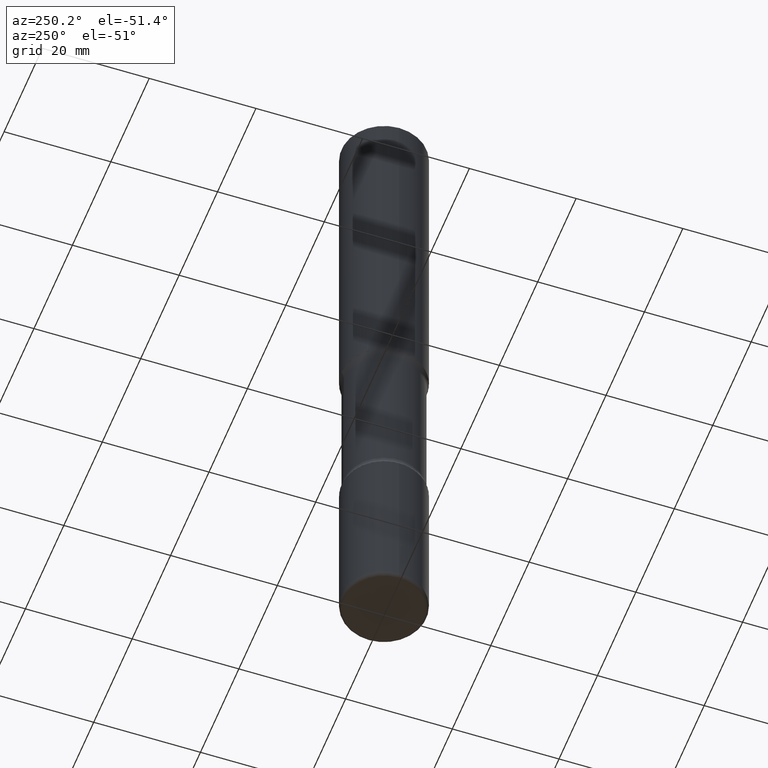
[diagram: clean part render]
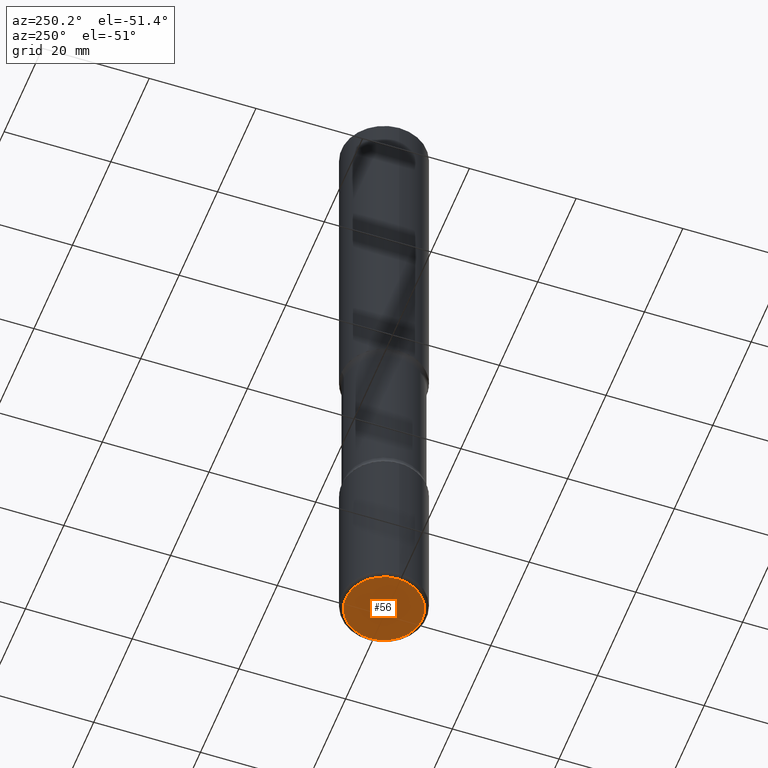
[diagram: same view with one face highlighted and labeled with its STEP entity id]
A machine part, auxiliary view. The second image highlights one B-rep face of the part: STEP entity #56.
In plain terms, the highlighted planar face has unit normal (0, -0, -1).
Its self-contained STEP definition (entity closure, byte-faithful):
#56 = ADVANCED_FACE ( 'NONE', ( #443 ), #554, .T. ) ;
#94 = EDGE_CURVE ( 'NONE', #204, #387, #232, .T. ) ;
#104 = CARTESIAN_POINT ( 'NONE',  ( 1.222734403092568523E-28, -1.745740669421573304E-14, -5.000000000000000888 ) ) ;
#169 = CARTESIAN_POINT ( 'NONE',  ( -0.2825000000000003064, -1.529116983524678288E-14, -5.000000000000000888 ) ) ;
#200 = ORIENTED_EDGE ( 'NONE', *, *, #94, .F. ) ;
#201 = AXIS2_PLACEMENT_3D ( 'NONE', #104, #275, #359 ) ;
#204 = VERTEX_POINT ( 'NONE', #407 ) ;
#221 = EDGE_CURVE ( 'NONE', #387, #204, #233, .T. ) ;
#232 = CIRCLE ( 'NONE', #201, 0.2825000000000003064 ) ;
#233 = CIRCLE ( 'NONE', #535, 0.2825000000000003064 ) ;
#242 = EDGE_LOOP ( 'NONE', ( #200, #245 ) ) ;
#245 = ORIENTED_EDGE ( 'NONE', *, *, #221, .F. ) ;
#262 = DIRECTION ( 'NONE',  ( -1.000000000000000000, 6.982962677686265922E-15, -4.876176775795935793E-29 ) ) ;
#275 = DIRECTION ( 'NONE',  ( -2.445468806185136597E-29, 3.491481338843145583E-15, 1.000000000000000000 ) ) ;
#339 = DIRECTION ( 'NONE',  ( 2.438088387897960049E-29, -3.491481338843145188E-15, -1.000000000000000000 ) ) ;
#359 = DIRECTION ( 'NONE',  ( 1.000000000000000000, -6.982962677686261977E-15, 0.000000000000000000 ) ) ;
#379 = AXIS2_PLACEMENT_3D ( 'NONE', #483, #339, #262 ) ;
#387 = VERTEX_POINT ( 'NONE', #169 ) ;
#407 = CARTESIAN_POINT ( 'NONE',  ( 0.2825000000000003064, -1.943009365066210307E-14, -5.000000000000000888 ) ) ;
#443 = FACE_OUTER_BOUND ( 'NONE', #242, .T. ) ;
#446 = CARTESIAN_POINT ( 'NONE',  ( 1.222734403092568523E-28, -1.745740669421573304E-14, -5.000000000000000888 ) ) ;
#453 = DIRECTION ( 'NONE',  ( -2.445468806185136597E-29, 3.491481338843145583E-15, 1.000000000000000000 ) ) ;
#483 = CARTESIAN_POINT ( 'NONE',  ( -1.278066645796191221E-29, -3.679792346352024126E-14, -5.000000000000000000 ) ) ;
#532 = DIRECTION ( 'NONE',  ( 1.000000000000000000, -6.982962677686261977E-15, 0.000000000000000000 ) ) ;
#535 = AXIS2_PLACEMENT_3D ( 'NONE', #446, #453, #532 ) ;
#554 = PLANE ( 'NONE',  #379 ) ;